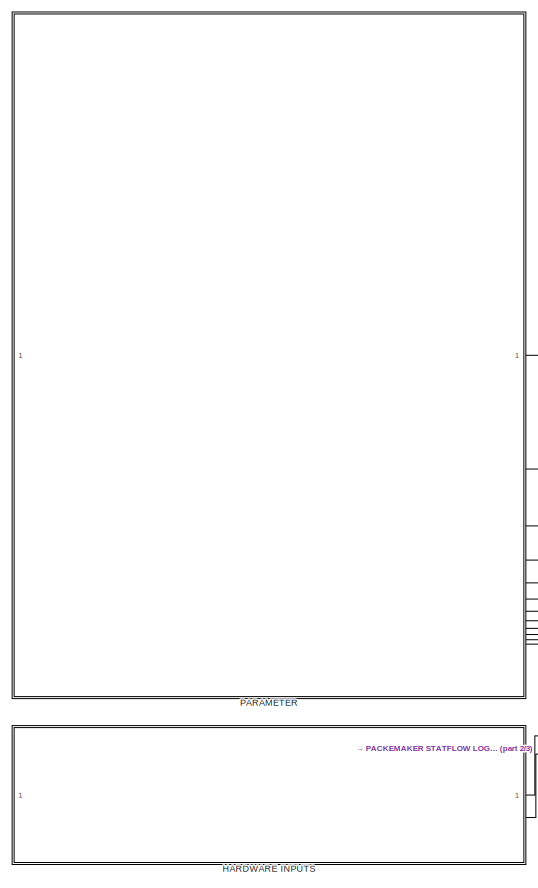
[diagram: root canvas - part 1/3, left side, full height]
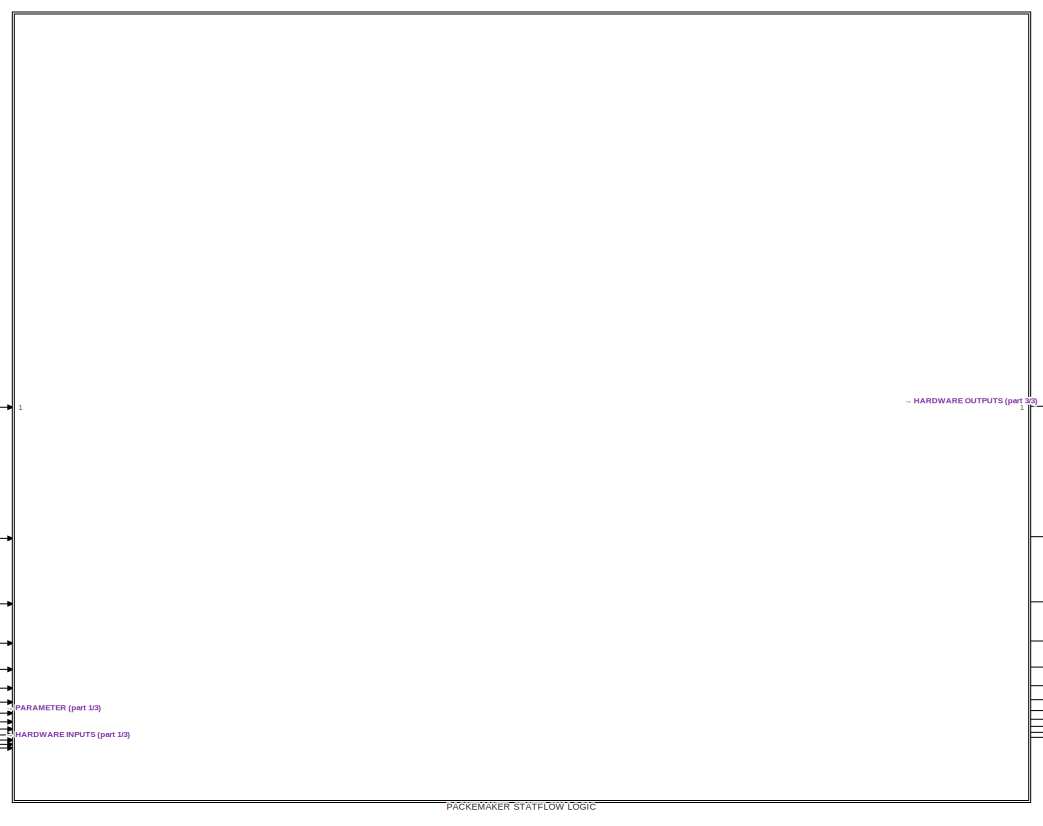
[diagram: root canvas - part 2/3, center side, full height]
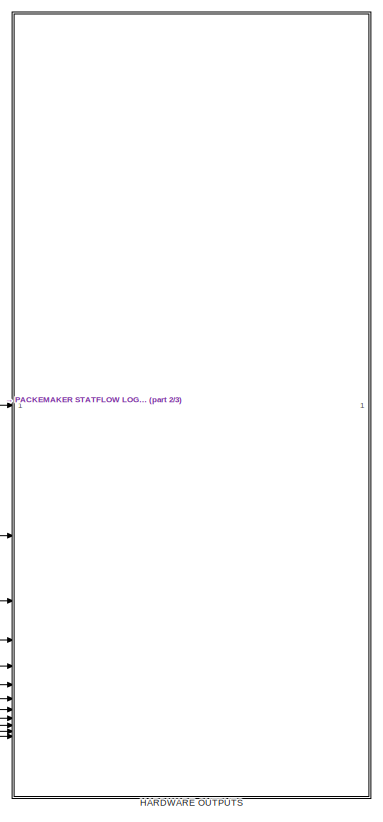
[diagram: root canvas - part 3/3, right side, full height]
MODEL slx_5ec1928354aa
KIND model
CONFIG AbsTol = auto
CONFIG EnableMultiTasking = on
CONFIG FixedStep = 1e-3
CONFIG MaxStep = auto
CONFIG MinStep = auto
CONFIG RelTol = 1e-3
CONFIG SampleTimeConstraint = Unconstrained
CONFIG SolverName = FixedStepAuto
CONFIG StartTime = 0.0
CONFIG StopTime = 10.0
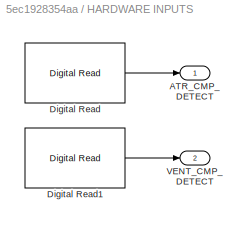
BLOCK [SubSystem] HARDWARE INPUTS
BLOCK [Outport] HARDWARE INPUTS/ATR_CMP_DETECT
BLOCK [Reference] HARDWARE INPUTS/Digital Read  REF=frdmk64flib/Digital Read
  SourceBlock = frdmk64flib/Digital Read
  SourceType = freedomk64f.DigitalRead
BLOCK [Reference] HARDWARE INPUTS/Digital Read1  REF=frdmk64flib/Digital Read
  SourceBlock = frdmk64flib/Digital Read
  SourceType = freedomk64f.DigitalRead
BLOCK [Outport] HARDWARE INPUTS/VENT_CMP_DETECT
  Port = 2
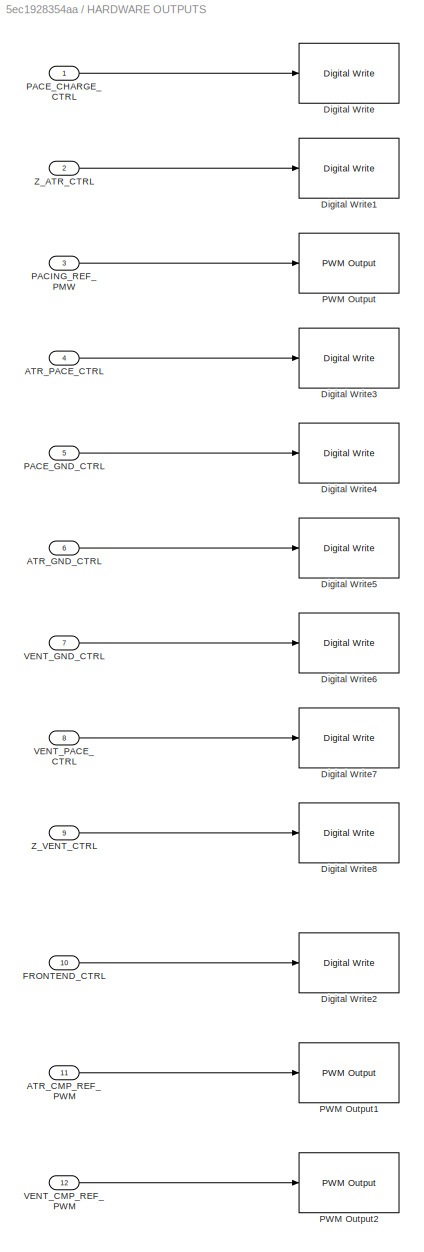
BLOCK [SubSystem] HARDWARE OUTPUTS
BLOCK [Inport] HARDWARE OUTPUTS/ATR_CMP_REF_PWM
  Port = 11
BLOCK [Inport] HARDWARE OUTPUTS/ATR_GND_CTRL
  Port = 6
BLOCK [Inport] HARDWARE OUTPUTS/ATR_PACE_CTRL
  Port = 4
BLOCK [Reference] HARDWARE OUTPUTS/Digital Write  REF=frdmk64flib/Digital Write
  SourceBlock = frdmk64flib/Digital Write
  SourceType = freedomk64f.DigitalWrite
BLOCK [Reference] HARDWARE OUTPUTS/Digital Write1  REF=frdmk64flib/Digital Write
  SourceBlock = frdmk64flib/Digital Write
  SourceType = freedomk64f.DigitalWrite
BLOCK [Reference] HARDWARE OUTPUTS/Digital Write2  REF=frdmk64flib/Digital Write
  SourceBlock = frdmk64flib/Digital Write
  SourceType = freedomk64f.DigitalWrite
BLOCK [Reference] HARDWARE OUTPUTS/Digital Write3  REF=frdmk64flib/Digital Write
  SourceBlock = frdmk64flib/Digital Write
  SourceType = freedomk64f.DigitalWrite
BLOCK [Reference] HARDWARE OUTPUTS/Digital Write4  REF=frdmk64flib/Digital Write
  SourceBlock = frdmk64flib/Digital Write
  SourceType = freedomk64f.DigitalWrite
BLOCK [Reference] HARDWARE OUTPUTS/Digital Write5  REF=frdmk64flib/Digital Write
  SourceBlock = frdmk64flib/Digital Write
  SourceType = freedomk64f.DigitalWrite
BLOCK [Reference] HARDWARE OUTPUTS/Digital Write6  REF=frdmk64flib/Digital Write
  SourceBlock = frdmk64flib/Digital Write
  SourceType = freedomk64f.DigitalWrite
BLOCK [Reference] HARDWARE OUTPUTS/Digital Write7  REF=frdmk64flib/Digital Write
  SourceBlock = frdmk64flib/Digital Write
  SourceType = freedomk64f.DigitalWrite
BLOCK [Reference] HARDWARE OUTPUTS/Digital Write8  REF=frdmk64flib/Digital Write
  SourceBlock = frdmk64flib/Digital Write
  SourceType = freedomk64f.DigitalWrite
BLOCK [Inport] HARDWARE OUTPUTS/FRONTEND_CTRL
  Port = 10
BLOCK [Inport] HARDWARE OUTPUTS/PACE_CHARGE_CTRL
BLOCK [Inport] HARDWARE OUTPUTS/PACE_GND_CTRL
  Port = 5
BLOCK [Inport] HARDWARE OUTPUTS/PACING_REF_PMW
  Port = 3
BLOCK [Reference] HARDWARE OUTPUTS/PWM Output  REF=frdmk64flib/PWM Output
  SourceBlock = frdmk64flib/PWM Output
  SourceType = freedomk64f.PWMOutput
BLOCK [Reference] HARDWARE OUTPUTS/PWM Output1  REF=frdmk64flib/PWM Output
  SourceBlock = frdmk64flib/PWM Output
  SourceType = freedomk64f.PWMOutput
BLOCK [Reference] HARDWARE OUTPUTS/PWM Output2  REF=frdmk64flib/PWM Output
  SourceBlock = frdmk64flib/PWM Output
  SourceType = freedomk64f.PWMOutput
BLOCK [Inport] HARDWARE OUTPUTS/VENT_CMP_REF_PWM
  Port = 12
BLOCK [Inport] HARDWARE OUTPUTS/VENT_GND_CTRL
  Port = 7
BLOCK [Inport] HARDWARE OUTPUTS/VENT_PACE_CTRL
  Port = 8
BLOCK [Inport] HARDWARE OUTPUTS/Z_ATR_CTRL
  Port = 2
BLOCK [Inport] HARDWARE OUTPUTS/Z_VENT_CTRL
  Port = 9
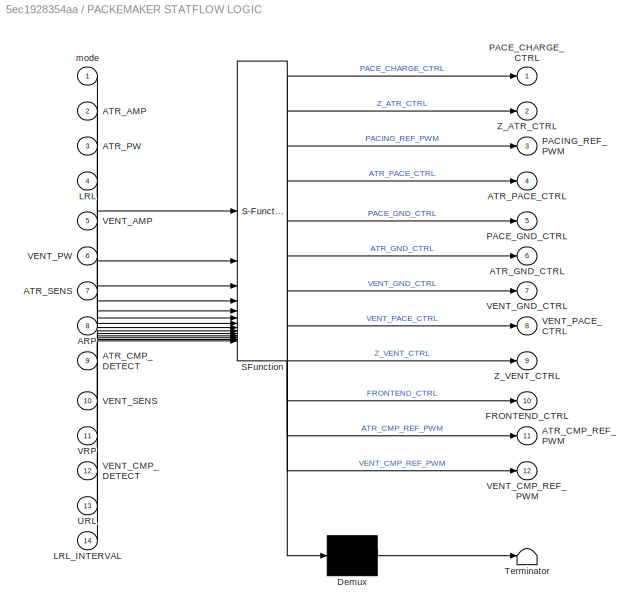
BLOCK [SubSystem] PACKEMAKER STATFLOW LOGIC
  ErrorFcn = Stateflow.Translate.translate
  PermitHierarchicalResolution = ExplicitOnly
  PortSchema = {"entries":[{"content":{"sides":[{"content":{"connectorIds":["In1","In4","In13","In5","In2","In6","In3","In7","In10","In8","In11","In14","In9","In12"]},"type":"ConnectorPlacement.EquallySpacedRectSide","uuid":"2821f65a-9b3e-4ca7-babd-b0602bfdca31"},{"content":{"connectorIds":["Out1","Out2","Out3","Out4","Out5","Out6","Out7","Out8","Out9","Out10","Out11","Out12"],"side":"RIGHT"},"type":"ConnectorPl...<+385ch>
  SFBlockType = Chart
  TreatAsAtomicUnit = on
BLOCK [Demux] PACKEMAKER STATFLOW LOGIC/ Demux 
  Outputs = 1
BLOCK [S-Function] PACKEMAKER STATFLOW LOGIC/ SFunction 
  EnableBusSupport = off
  FunctionName = sf_sfun
  PortCounts = [14 13]
  SFcnIsStateOwnerBlock = off
  SFunctionDeploymentMode = off
  Tag = Stateflow S-Function 3
BLOCK [Terminator] PACKEMAKER STATFLOW LOGIC/ Terminator 
BLOCK [Inport] PACKEMAKER STATFLOW LOGIC/ARP
  Port = 8
BLOCK [Inport] PACKEMAKER STATFLOW LOGIC/ATR_AMP
  Port = 2
BLOCK [Inport] PACKEMAKER STATFLOW LOGIC/ATR_CMP_DETECT
  Port = 9
BLOCK [Outport] PACKEMAKER STATFLOW LOGIC/ATR_CMP_REF_PWM
  Port = 11
BLOCK [Outport] PACKEMAKER STATFLOW LOGIC/ATR_GND_CTRL
  Port = 6
BLOCK [Outport] PACKEMAKER STATFLOW LOGIC/ATR_PACE_CTRL
  Port = 4
BLOCK [Inport] PACKEMAKER STATFLOW LOGIC/ATR_PW
  Port = 3
BLOCK [Inport] PACKEMAKER STATFLOW LOGIC/ATR_SENS
  Port = 7
BLOCK [Outport] PACKEMAKER STATFLOW LOGIC/FRONTEND_CTRL
  Port = 10
BLOCK [Inport] PACKEMAKER STATFLOW LOGIC/LRL
  Port = 4
BLOCK [Inport] PACKEMAKER STATFLOW LOGIC/LRL_INTERVAL
  Port = 14
BLOCK [Outport] PACKEMAKER STATFLOW LOGIC/PACE_CHARGE_CTRL
BLOCK [Outport] PACKEMAKER STATFLOW LOGIC/PACE_GND_CTRL
  Port = 5
BLOCK [Outport] PACKEMAKER STATFLOW LOGIC/PACING_REF_PWM
  Port = 3
BLOCK [Inport] PACKEMAKER STATFLOW LOGIC/URL
  Port = 13
BLOCK [Inport] PACKEMAKER STATFLOW LOGIC/VENT_AMP
  Port = 5
BLOCK [Inport] PACKEMAKER STATFLOW LOGIC/VENT_CMP_DETECT
  Port = 12
BLOCK [Outport] PACKEMAKER STATFLOW LOGIC/VENT_CMP_REF_PWM
  Port = 12
BLOCK [Outport] PACKEMAKER STATFLOW LOGIC/VENT_GND_CTRL
  Port = 7
BLOCK [Outport] PACKEMAKER STATFLOW LOGIC/VENT_PACE_CTRL
  Port = 8
BLOCK [Inport] PACKEMAKER STATFLOW LOGIC/VENT_PW
  Port = 6
BLOCK [Inport] PACKEMAKER STATFLOW LOGIC/VENT_SENS
  Port = 10
BLOCK [Inport] PACKEMAKER STATFLOW LOGIC/VRP
  Port = 11
BLOCK [Outport] PACKEMAKER STATFLOW LOGIC/Z_ATR_CTRL
  Port = 2
BLOCK [Outport] PACKEMAKER STATFLOW LOGIC/Z_VENT_CTRL
  Port = 9
BLOCK [Inport] PACKEMAKER STATFLOW LOGIC/mode
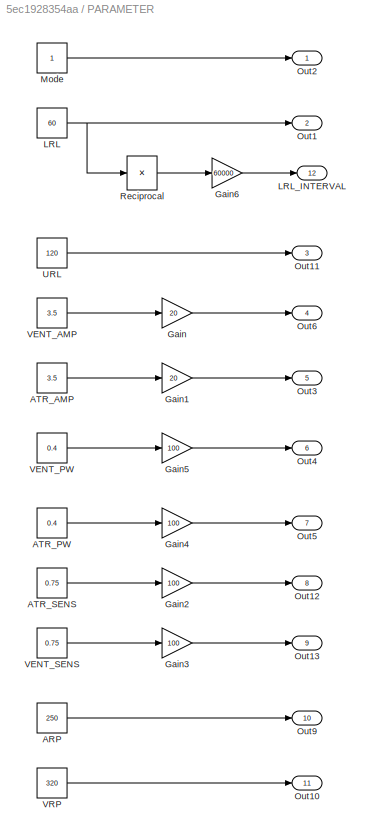
BLOCK [SubSystem] PARAMETER 
BLOCK [Constant] PARAMETER /ARP
  Value = 250
BLOCK [Constant] PARAMETER /ATR_AMP
  Value = 3.5
BLOCK [Constant] PARAMETER /ATR_PW
  Value = 0.4
BLOCK [Constant] PARAMETER /ATR_SENS
  Value = 0.75
BLOCK [Gain] PARAMETER /Gain
  Gain = 20
BLOCK [Gain] PARAMETER /Gain1
  Gain = 20
BLOCK [Gain] PARAMETER /Gain2
  Gain = 100
BLOCK [Gain] PARAMETER /Gain3
  Gain = 100
BLOCK [Gain] PARAMETER /Gain4
  Gain = 100
BLOCK [Gain] PARAMETER /Gain5
  Gain = 100
BLOCK [Gain] PARAMETER /Gain6
  Gain = 60000
BLOCK [Constant] PARAMETER /LRL
  Value = 60
BLOCK [Outport] PARAMETER /LRL_INTERVAL
  Port = 12
BLOCK [Constant] PARAMETER /Mode
BLOCK [Outport] PARAMETER /Out1
  Port = 2
BLOCK [Outport] PARAMETER /Out10
  Port = 11
BLOCK [Outport] PARAMETER /Out11
  Port = 3
BLOCK [Outport] PARAMETER /Out12
  Port = 8
BLOCK [Outport] PARAMETER /Out13
  Port = 9
BLOCK [Outport] PARAMETER /Out2
BLOCK [Outport] PARAMETER /Out3
  Port = 5
BLOCK [Outport] PARAMETER /Out4
  Port = 6
BLOCK [Outport] PARAMETER /Out5
  Port = 7
BLOCK [Outport] PARAMETER /Out6
  Port = 4
BLOCK [Outport] PARAMETER /Out9
  Port = 10
BLOCK [Product] PARAMETER /Reciprocal
  Inputs = /
BLOCK [Constant] PARAMETER /URL
  Value = 120
BLOCK [Constant] PARAMETER /VENT_AMP
  Value = 3.5
BLOCK [Constant] PARAMETER /VENT_PW
  Value = 0.4
BLOCK [Constant] PARAMETER /VENT_SENS
  Value = 0.75
BLOCK [Constant] PARAMETER /VRP
  Value = 320
LINE HARDWARE INPUTS/Digital Read1:1 -> HARDWARE INPUTS/VENT_CMP_DETECT:1
LINE HARDWARE INPUTS/Digital Read:1 -> HARDWARE INPUTS/ATR_CMP_DETECT:1
LINE HARDWARE INPUTS:1 -> PACKEMAKER STATFLOW LOGIC:9
LINE HARDWARE INPUTS:2 -> PACKEMAKER STATFLOW LOGIC:12
LINE HARDWARE OUTPUTS/ATR_CMP_REF_PWM:1 -> HARDWARE OUTPUTS/PWM Output1:1
LINE HARDWARE OUTPUTS/ATR_GND_CTRL:1 -> HARDWARE OUTPUTS/Digital Write5:1
LINE HARDWARE OUTPUTS/ATR_PACE_CTRL:1 -> HARDWARE OUTPUTS/Digital Write3:1
LINE HARDWARE OUTPUTS/FRONTEND_CTRL:1 -> HARDWARE OUTPUTS/Digital Write2:1
LINE HARDWARE OUTPUTS/PACE_CHARGE_CTRL:1 -> HARDWARE OUTPUTS/Digital Write:1
LINE HARDWARE OUTPUTS/PACE_GND_CTRL:1 -> HARDWARE OUTPUTS/Digital Write4:1
LINE HARDWARE OUTPUTS/PACING_REF_PMW:1 -> HARDWARE OUTPUTS/PWM Output:1
LINE HARDWARE OUTPUTS/VENT_CMP_REF_PWM:1 -> HARDWARE OUTPUTS/PWM Output2:1
LINE HARDWARE OUTPUTS/VENT_GND_CTRL:1 -> HARDWARE OUTPUTS/Digital Write6:1
LINE HARDWARE OUTPUTS/VENT_PACE_CTRL:1 -> HARDWARE OUTPUTS/Digital Write7:1
LINE HARDWARE OUTPUTS/Z_ATR_CTRL:1 -> HARDWARE OUTPUTS/Digital Write1:1
LINE HARDWARE OUTPUTS/Z_VENT_CTRL:1 -> HARDWARE OUTPUTS/Digital Write8:1
LINE PACKEMAKER STATFLOW LOGIC:1 -> HARDWARE OUTPUTS:1
LINE PACKEMAKER STATFLOW LOGIC:10 -> HARDWARE OUTPUTS:10
LINE PACKEMAKER STATFLOW LOGIC:11 -> HARDWARE OUTPUTS:11
LINE PACKEMAKER STATFLOW LOGIC:12 -> HARDWARE OUTPUTS:12
LINE PACKEMAKER STATFLOW LOGIC:2 -> HARDWARE OUTPUTS:2
LINE PACKEMAKER STATFLOW LOGIC:3 -> HARDWARE OUTPUTS:3
LINE PACKEMAKER STATFLOW LOGIC:4 -> HARDWARE OUTPUTS:4
LINE PACKEMAKER STATFLOW LOGIC:5 -> HARDWARE OUTPUTS:5
LINE PACKEMAKER STATFLOW LOGIC:6 -> HARDWARE OUTPUTS:6
LINE PACKEMAKER STATFLOW LOGIC:7 -> HARDWARE OUTPUTS:7
LINE PACKEMAKER STATFLOW LOGIC:8 -> HARDWARE OUTPUTS:8
LINE PACKEMAKER STATFLOW LOGIC:9 -> HARDWARE OUTPUTS:9
LINE PARAMETER /ARP:1 -> PARAMETER /Out9:1
LINE PARAMETER /ATR_AMP:1 -> PARAMETER /Gain1:1
LINE PARAMETER /ATR_PW:1 -> PARAMETER /Gain4:1
LINE PARAMETER /ATR_SENS:1 -> PARAMETER /Gain2:1
LINE PARAMETER /Gain1:1 -> PARAMETER /Out3:1
LINE PARAMETER /Gain2:1 -> PARAMETER /Out12:1
LINE PARAMETER /Gain3:1 -> PARAMETER /Out13:1
LINE PARAMETER /Gain4:1 -> PARAMETER /Out5:1
LINE PARAMETER /Gain5:1 -> PARAMETER /Out4:1
LINE PARAMETER /Gain6:1 -> PARAMETER /LRL_INTERVAL:1
LINE PARAMETER /Gain:1 -> PARAMETER /Out6:1
NET PARAMETER /LRL:1 -> PARAMETER /Out1:1, PARAMETER /Reciprocal:1
LINE PARAMETER /Mode:1 -> PARAMETER /Out2:1
LINE PARAMETER /Reciprocal:1 -> PARAMETER /Gain6:1
LINE PARAMETER /URL:1 -> PARAMETER /Out11:1
LINE PARAMETER /VENT_AMP:1 -> PARAMETER /Gain:1
LINE PARAMETER /VENT_PW:1 -> PARAMETER /Gain5:1
LINE PARAMETER /VENT_SENS:1 -> PARAMETER /Gain3:1
LINE PARAMETER /VRP:1 -> PARAMETER /Out10:1
LINE PARAMETER :1 -> PACKEMAKER STATFLOW LOGIC:1
LINE PARAMETER :10 -> PACKEMAKER STATFLOW LOGIC:8
LINE PARAMETER :11 -> PACKEMAKER STATFLOW LOGIC:11
LINE PARAMETER :12 -> PACKEMAKER STATFLOW LOGIC:14
LINE PARAMETER :2 -> PACKEMAKER STATFLOW LOGIC:4
LINE PARAMETER :3 -> PACKEMAKER STATFLOW LOGIC:13
LINE PARAMETER :4 -> PACKEMAKER STATFLOW LOGIC:5
LINE PARAMETER :5 -> PACKEMAKER STATFLOW LOGIC:2
LINE PARAMETER :6 -> PACKEMAKER STATFLOW LOGIC:6
LINE PARAMETER :7 -> PACKEMAKER STATFLOW LOGIC:3
LINE PARAMETER :8 -> PACKEMAKER STATFLOW LOGIC:7
LINE PARAMETER :9 -> PACKEMAKER STATFLOW LOGIC:10
note: NET lines group one-source signal fan-out (src -> all destinations, sorted); 1:1 wires keep LINE
CHART PACKEMAKER STATFLOW LOGIC states=13 transitions=28
  STATE_LABEL 'AAI\n'
  STATE_LABEL 'AAI_Charge\n\nentry:\nFRONTEND_CTRL = 1;\n%Charging C22\nATR_PACE_CTRL = 0;\nVENT_PACE_CTRL = 0;\nPACING_REF_PWM = ATR_AMP;\nPACE_CHARGE_CTRL = 1;\n%Discharging C21\nPACE_GND_CTRL = 1;\nATR_PACE_CTRL = 0;\nZ_VENT_CTRL = 0;\nZ_ATR_CTRL = 0;\nVENT_PACE_CTRL = 0;\nVENT_GND_CTRL = 0;\nATR_GND_CTRL = 1;\nATR_CMP_REF_PWM = ATR_SENS;'
  STATE_LABEL 'AAI_Pace\n\nentry:\nFRONTEND_CTRL = 0;\n%Pacing\nPACE_CHARGE_CTRL = 0;\nPACE_GND_CTRL= 1;\nVENT_PACE_CTRL = 0;\nVENT_GND_CTRL= 0;\nZ_VENT_CTRL = 0;\nZ_ATR_CTRL = 0;\nATR_GND_CTRL = 0;\nATR_PACE_CTRL= 1;\n'
  STATE_LABEL '[after(LRL_INTERVAL - ATR_PW - ARP,msec)]'
  STATE_LABEL '[after(ATR_PW,msec)]'
  STATE_LABEL '[after(ATR_PW,msec)]'
  STATE_LABEL '[ATR_CMP_DETECT == 1]'
  STATE_LABEL '[after(ARP, msec)]'
  STATE_LABEL 'AAI_Charge\n\nentry:\nFRONTEND_CTRL = 1;\n%Charging C22\nATR_PACE_CTRL = 0;\nVENT_PACE_CTRL = 0;\nPACING_REF_PWM = ATR_AMP;\nPACE_CHARGE_CTRL = 1;\n%Discharging C21\nPACE_GND_CTRL = 1;\nATR_PACE_CTRL = 0;\nZ_VENT_CTRL = 0;\nZ_ATR_CTRL = 0;\nVENT_PACE_CTRL = 0;\nVENT_GND_CTRL = 0;\nATR_GND_CTRL = 1;\nATR_CMP_REF_PWM = ATR_SENS;'
  STATE_LABEL 'AAI_Pace\n\nentry:\nFRONTEND_CTRL = 0;\n%Pacing\nPACE_CHARGE_CTRL = 0;\nPACE_GND_CTRL= 1;\nVENT_PACE_CTRL = 0;\nVENT_GND_CTRL= 0;\nZ_VENT_CTRL = 0;\nZ_ATR_CTRL = 0;\nATR_GND_CTRL = 0;\nATR_PACE_CTRL= 1;\n'
  STATE_LABEL 'Start\n'
  STATE_LABEL 'VOO\n'
  STATE_LABEL 'VOO_Charge\n\nentry:\n%Charging C22\nVENT_PACE_CTRL = 0;\nATR_PACE_CTRL = 0;\nPACING_REF_PWM = VENT_AMP;\nPACE_CHARGE_CTRL = 1;\n%Discharging C21\nPACE_GND_CTRL = 1;\nVENT_PACE_CTRL = 0;\nZ_ATR_CTRL = 0;\nZ_VENT_CTRL = 0;\nATR_PACE_CTRL = 0;\nATR_GND_CTRL = 0;\nVENT_GND_CTRL = 1;'
  STATE_LABEL 'AOO_Pace\n\nentry:\n%Pacing\nPACE_CHARGE_CTRL = 0;\nPACE_GND_CTRL= 1;\nATR_PACE_CTRL = 0;\nATR_GND_CTRL= 0;\nZ_ATR_CTRL = 0;\nZ_VENT_CTRL = 0;\nVENT_GND_CTRL = 0;\nVENT_PACE_CTRL = 1;'
  STATE_LABEL '[after(LRL_INTERVAL - VENT_PW,msec)]'
  STATE_LABEL '[after(VENT_PW,msec)]'
  STATE_LABEL 'VOO_Charge\n\nentry:\n%Charging C22\nVENT_PACE_CTRL = 0;\nATR_PACE_CTRL = 0;\nPACING_REF_PWM = VENT_AMP;\nPACE_CHARGE_CTRL = 1;\n%Discharging C21\nPACE_GND_CTRL = 1;\nVENT_PACE_CTRL = 0;\nZ_ATR_CTRL = 0;\nZ_VENT_CTRL = 0;\nATR_PACE_CTRL = 0;\nATR_GND_CTRL = 0;\nVENT_GND_CTRL = 1;'
  STATE_LABEL 'AOO_Pace\n\nentry:\n%Pacing\nPACE_CHARGE_CTRL = 0;\nPACE_GND_CTRL= 1;\nATR_PACE_CTRL = 0;\nATR_GND_CTRL= 0;\nZ_ATR_CTRL = 0;\nZ_VENT_CTRL = 0;\nVENT_GND_CTRL = 0;\nVENT_PACE_CTRL = 1;'
  STATE_LABEL 'AOO\n'
  STATE_LABEL 'AOO_Charge\n\nentry:\n%Charging C22\nATR_PACE_CTRL = 0;\nVENT_PACE_CTRL = 0;\nPACING_REF_PWM = ATR_AMP;\nPACE_CHARGE_CTRL = 1;\n%Discharging C21\nPACE_GND_CTRL = 1;\nATR_PACE_CTRL = 0;\nZ_VENT_CTRL = 0;\nZ_ATR_CTRL = 0;\nVENT_PACE_CTRL = 0;\nVENT_GND_CTRL = 0;\nATR_GND_CTRL = 1;'
  STATE_LABEL 'AOO_Pace\n\nentry:\n%Pacing\nPACE_CHARGE_CTRL = 0;\nPACE_GND_CTRL= 1;\nVENT_PACE_CTRL = 0;\nVENT_GND_CTRL= 0;\nZ_VENT_CTRL = 0;\nZ_ATR_CTRL = 0;\nATR_GND_CTRL = 0;\nATR_PACE_CTRL = 1;\n'
  STATE_LABEL '[after(LRL_INTERVAL - ATR_PW,msec)]'
  STATE_LABEL '[after(ATR_PW,msec)]'
  STATE_LABEL 'AOO_Charge\n\nentry:\n%Charging C22\nATR_PACE_CTRL = 0;\nVENT_PACE_CTRL = 0;\nPACING_REF_PWM = ATR_AMP;\nPACE_CHARGE_CTRL = 1;\n%Discharging C21\nPACE_GND_CTRL = 1;\nATR_PACE_CTRL = 0;\nZ_VENT_CTRL = 0;\nZ_ATR_CTRL = 0;\nVENT_PACE_CTRL = 0;\nVENT_GND_CTRL = 0;\nATR_GND_CTRL = 1;'
  STATE_LABEL 'AOO_Pace\n\nentry:\n%Pacing\nPACE_CHARGE_CTRL = 0;\nPACE_GND_CTRL= 1;\nVENT_PACE_CTRL = 0;\nVENT_GND_CTRL= 0;\nZ_VENT_CTRL = 0;\nZ_ATR_CTRL = 0;\nATR_GND_CTRL = 0;\nATR_PACE_CTRL = 1;\n'
  STATE_LABEL 'VVI\n'
  STATE_LABEL 'VVI_Charge\n\nentry:\nFRONTEND_CTRL = 1;\n%Charging C22\nVENT_PACE_CTRL = 0;\nATR_PACE_CTRL = 0;\nPACING_REF_PWM = VENT_AMP;\nPACE_CHARGE_CTRL = 1;\n%Discharging C21\nPACE_GND_CTRL = 1;\nVENT_PACE_CTRL = 0;\nZ_ATR_CTRL = 0;\nZ_VENT_CTRL = 0;\nATR_PACE_CTRL = 0;\nATR_GND_CTRL = 0;\nVENT_GND_CTRL = 1;\nVENT_CMP_REF_PWM = VENT_SENS;'
  STATE_LABEL 'VVI_Pace\n\nentry:\nFRONTEND_CTRL = 0;\n%Pacing\nPACE_CHARGE_CTRL = 0;\nPACE_GND_CTRL= 1;\nATR_PACE_CTRL = 0;\nATR_GND_CTRL= 0;\nZ_ATR_CTRL = 0;\nZ_VENT_CTRL = 0;\nVENT_GND_CTRL = 0;\nVENT_PACE_CTRL = 1;\n'
  STATE_LABEL '[after(LRL_INTERVAL - VENT_PW - VRP,msec)]'
  STATE_LABEL '[after(VENT_PW,msec)]'
  STATE_LABEL '[VENT_CMP_DETECT == 1]'
  STATE_LABEL '[after(VENT_PW,msec)]'
  STATE_LABEL '[after(VENT_PW,msec)]'
  STATE_LABEL '[after(VRP, msec)]'
  STATE_LABEL 'VVI_Charge\n\nentry:\nFRONTEND_CTRL = 1;\n%Charging C22\nVENT_PACE_CTRL = 0;\nATR_PACE_CTRL = 0;\nPACING_REF_PWM = VENT_AMP;\nPACE_CHARGE_CTRL = 1;\n%Discharging C21\nPACE_GND_CTRL = 1;\nVENT_PACE_CTRL = 0;\nZ_ATR_CTRL = 0;\nZ_VENT_CTRL = 0;\nATR_PACE_CTRL = 0;\nATR_GND_CTRL = 0;\nVENT_GND_CTRL = 1;\nVENT_CMP_REF_PWM = VENT_SENS;'
  STATE_LABEL 'VVI_Pace\n\nentry:\nFRONTEND_CTRL = 0;\n%Pacing\nPACE_CHARGE_CTRL = 0;\nPACE_GND_CTRL= 1;\nATR_PACE_CTRL = 0;\nATR_GND_CTRL= 0;\nZ_ATR_CTRL = 0;\nZ_VENT_CTRL = 0;\nVENT_GND_CTRL = 0;\nVENT_PACE_CTRL = 1;\n'
CHART  states=0 transitions=0
